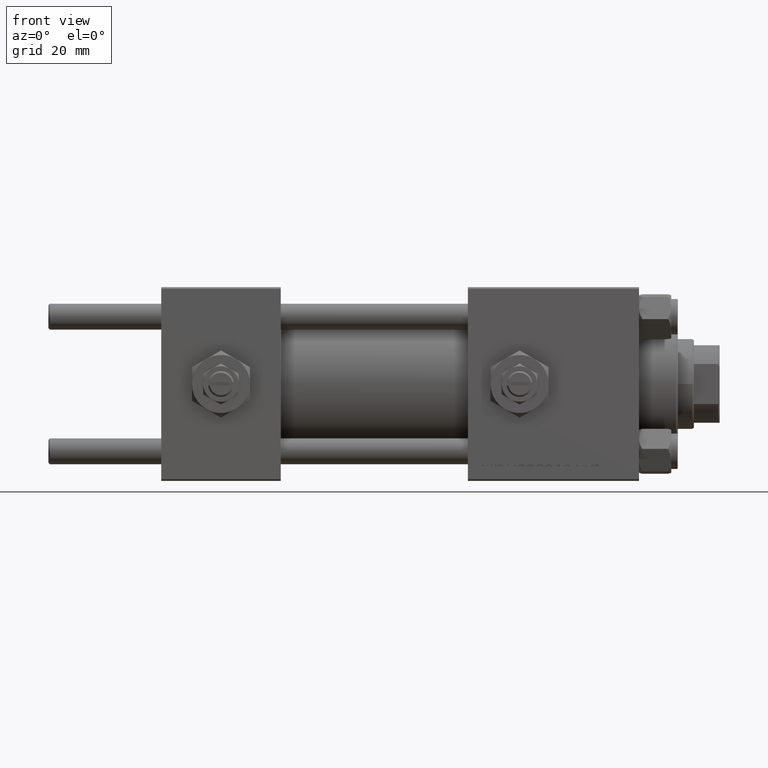
[diagram: clean part render]
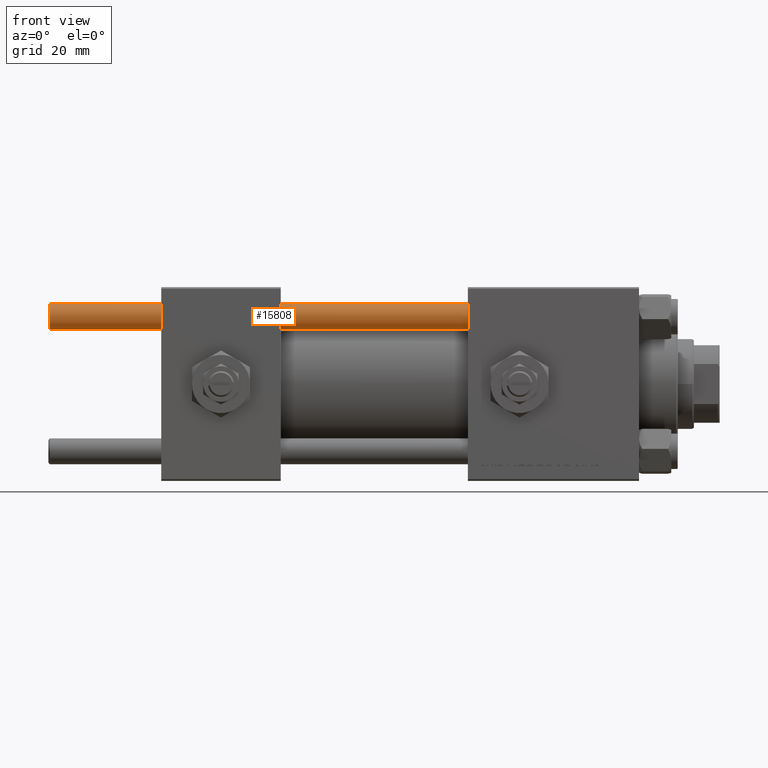
[diagram: same view with one face highlighted and labeled with its STEP entity id]
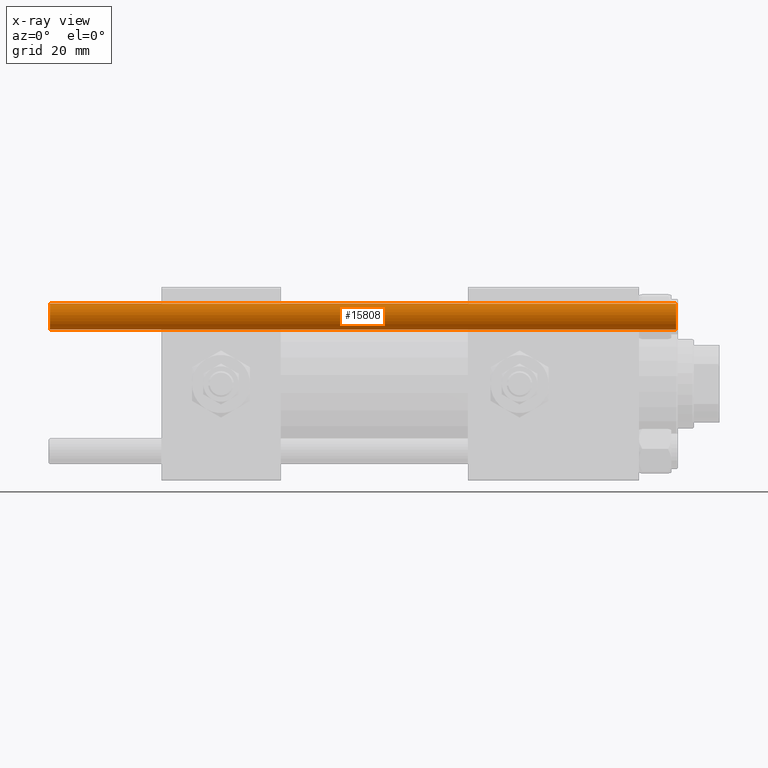
[diagram: x-ray of the same camera — body ghosted, the highlighted face saturated]
A machine part, front view. The second image highlights one B-rep face of the part: STEP entity #15808.
The next image is the same camera in x-ray: the body ghosted, the highlighted face saturated — about 0% of this face is hidden behind the body in this view.
In plain terms, the highlighted cylindrical surface (edge-blend (fillet) strip) has radius 4 mm, axis along (1, -0, 0).
Its self-contained STEP definition (entity closure, byte-faithful):
#4154 = VECTOR ( 'NONE', #38940, 1000.000000000000000 ) ;
#6864 = FACE_OUTER_BOUND ( 'NONE', #47013, .T. ) ;
#7526 = AXIS2_PLACEMENT_3D ( 'NONE', #21766, #30209, #34175 ) ;
#8394 = LINE ( 'NONE', #40034, #39213 ) ;
#8692 = AXIS2_PLACEMENT_3D ( 'NONE', #35370, #15299, #23210 ) ;
#10837 = ORIENTED_EDGE ( 'NONE', *, *, #49013, .T. ) ;
#11027 = DIRECTION ( 'NONE',  ( -0.000000000000000000, -0.000000000000000000, 1.000000000000000000 ) ) ;
#15194 = CARTESIAN_POINT ( 'NONE',  ( 4.000000000000000000, 4.898587196589412829E-16, 195.0000000000000000 ) ) ;
#15299 = DIRECTION ( 'NONE',  ( -0.000000000000000000, -0.000000000000000000, -1.000000000000000000 ) ) ;
#15483 = CARTESIAN_POINT ( 'NONE',  ( 0.000000000000000000, 0.000000000000000000, 0.5000000000000004441 ) ) ;
#15484 = VERTEX_POINT ( 'NONE', #23276 ) ;
#15557 = ORIENTED_EDGE ( 'NONE', *, *, #24405, .F. ) ;
#15808 = ADVANCED_FACE ( 'NONE', ( #6864 ), #51409, .T. ) ;
#21766 = CARTESIAN_POINT ( 'NONE',  ( 0.000000000000000000, 0.000000000000000000, 194.5000000000000568 ) ) ;
#23147 = DIRECTION ( 'NONE',  ( 1.000000000000000000, 0.000000000000000000, 0.000000000000000000 ) ) ;
#23210 = DIRECTION ( 'NONE',  ( -1.000000000000000000, 0.000000000000000000, 0.000000000000000000 ) ) ;
#23276 = CARTESIAN_POINT ( 'NONE',  ( 4.000000000000000000, 4.898587196589412829E-16, 0.5000000000000004441 ) ) ;
#23517 = CIRCLE ( 'NONE', #7526, 4.000000000000000000 ) ;
#24405 = EDGE_CURVE ( 'NONE', #31667, #46091, #8394, .T. ) ;
#25055 = AXIS2_PLACEMENT_3D ( 'NONE', #15483, #11027, #23147 ) ;
#27919 = DIRECTION ( 'NONE',  ( -0.000000000000000000, -0.000000000000000000, -1.000000000000000000 ) ) ;
#29350 = CARTESIAN_POINT ( 'NONE',  ( 4.000000000000000000, 4.898587196589412829E-16, 194.5000000000000568 ) ) ;
#30209 = DIRECTION ( 'NONE',  ( 0.000000000000000000, 0.000000000000000000, -1.000000000000000000 ) ) ;
#31667 = VERTEX_POINT ( 'NONE', #51391 ) ;
#33227 = EDGE_CURVE ( 'NONE', #31667, #36410, #23517, .T. ) ;
#34175 = DIRECTION ( 'NONE',  ( 1.000000000000000000, 0.000000000000000000, 0.000000000000000000 ) ) ;
#34904 = EDGE_CURVE ( 'NONE', #36410, #15484, #51303, .T. ) ;
#35370 = CARTESIAN_POINT ( 'NONE',  ( 0.000000000000000000, 0.000000000000000000, 195.0000000000000000 ) ) ;
#36410 = VERTEX_POINT ( 'NONE', #29350 ) ;
#38940 = DIRECTION ( 'NONE',  ( -0.000000000000000000, -0.000000000000000000, -1.000000000000000000 ) ) ;
#39213 = VECTOR ( 'NONE', #27919, 1000.000000000000000 ) ;
#40034 = CARTESIAN_POINT ( 'NONE',  ( -4.000000000000000000, 0.000000000000000000, 195.0000000000000000 ) ) ;
#40989 = ORIENTED_EDGE ( 'NONE', *, *, #33227, .T. ) ;
#42261 = CARTESIAN_POINT ( 'NONE',  ( -4.000000000000000000, 0.000000000000000000, 0.5000000000000004441 ) ) ;
#46091 = VERTEX_POINT ( 'NONE', #42261 ) ;
#46358 = ORIENTED_EDGE ( 'NONE', *, *, #34904, .T. ) ;
#47013 = EDGE_LOOP ( 'NONE', ( #40989, #46358, #10837, #15557 ) ) ;
#48612 = CIRCLE ( 'NONE', #25055, 4.000000000000000000 ) ;
#49013 = EDGE_CURVE ( 'NONE', #15484, #46091, #48612, .T. ) ;
#51303 = LINE ( 'NONE', #15194, #4154 ) ;
#51391 = CARTESIAN_POINT ( 'NONE',  ( -4.000000000000000000, 0.000000000000000000, 194.5000000000000568 ) ) ;
#51409 = CYLINDRICAL_SURFACE ( 'NONE', #8692, 4.000000000000000000 ) ;